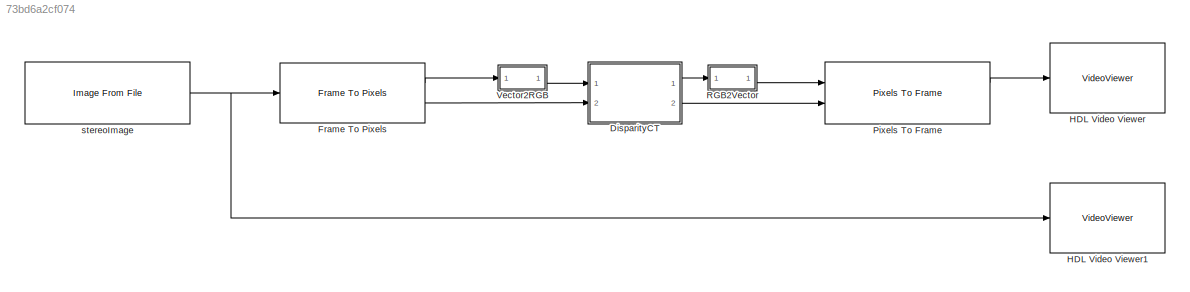
MODEL slx_73bd6a2cf074
KIND model
CONFIG AbsTol = auto
CONFIG EnableMultiTasking = off
CONFIG FixedStep = auto
CONFIG MaxStep = auto
CONFIG MinStep = auto
CONFIG RelTol = 1e-3
CONFIG SampleTimeConstraint = Unconstrained
CONFIG SolverName = VariableStepAuto
CONFIG StartTime = 0.0
CONFIG StopTime = 840000
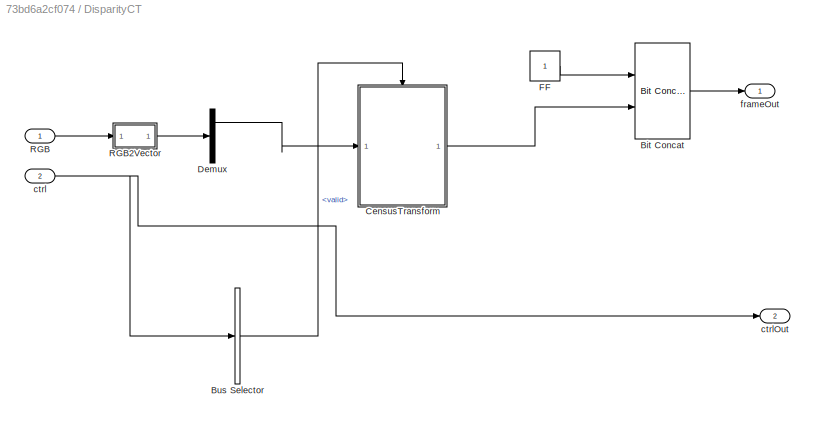
BLOCK [SubSystem] DisparityCT
  Ports = [2, 2]
  RequestExecContextInheritance = off
  TreatAsAtomicUnit = on
BLOCK [Reference] DisparityCT/Bit Concat  REF=hdlsllib/Logic and Bit
Operations/Bit Concat
  Ports = [2, 1]
  SourceBlock = hdlsllib/Logic and Bit\nOperations/Bit Concat
  SourceProductBaseCode = SL
  SourceType = Bit Concat
BLOCK [BusSelector] DisparityCT/Bus Selector
  OutputSignals = valid
  Ports = [1, 1]
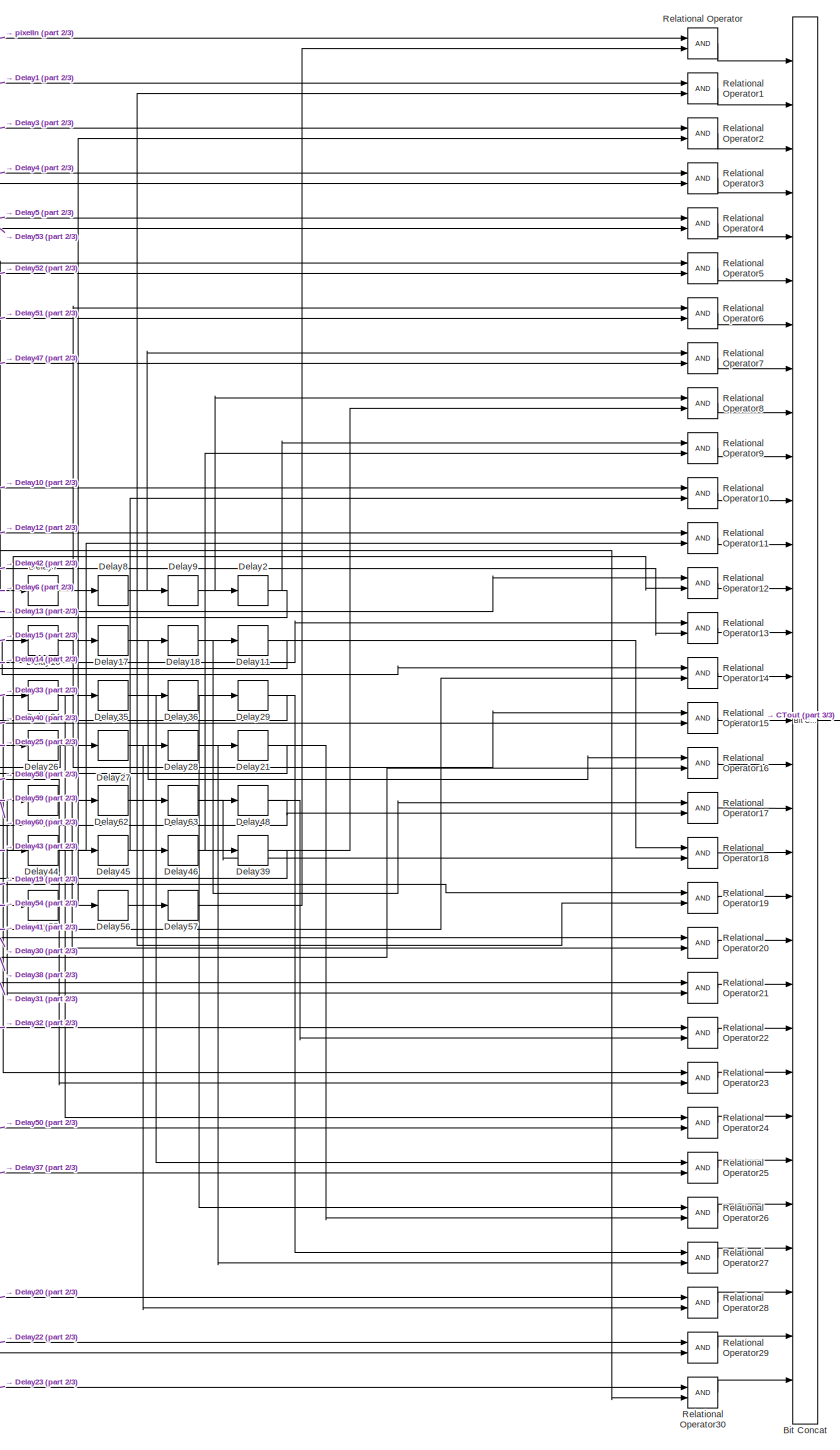
[diagram: DisparityCT/CensusTransform - part 1/3, center side, full height]
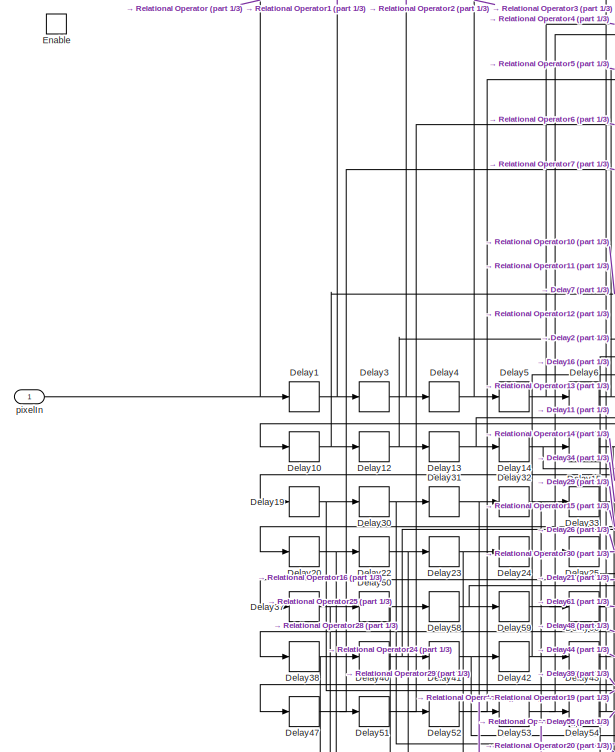
[diagram: DisparityCT/CensusTransform - part 2/3, middle left region]
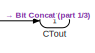
[diagram: DisparityCT/CensusTransform - part 3/3, middle right region]
BLOCK [SubSystem] DisparityCT/CensusTransform
  Ports = [1, 1, 1]
  RequestExecContextInheritance = off
BLOCK [Reference] DisparityCT/CensusTransform/Bit Concat  REF=hdlsllib/Logic and Bit
Operations/Bit Concat
  Ports = [31, 1]
  SourceBlock = hdlsllib/Logic and Bit\nOperations/Bit Concat
  SourceProductBaseCode = SL
  SourceType = Bit Concat
BLOCK [Outport] DisparityCT/CensusTransform/CTout
  InitialOutput = 0
  VectorParamsAs1DForOutWhenUnconnected = off
BLOCK [Delay] DisparityCT/CensusTransform/Delay1
  DelayLength = 9
  InputPortMap = u0
  Ports = [1, 1]
BLOCK [Delay] DisparityCT/CensusTransform/Delay10
  DelayLength = 9
  InputPortMap = u0
  Ports = [1, 1]
BLOCK [Delay] DisparityCT/CensusTransform/Delay11
  DelayLength = 632
  InputPortMap = u0
  Ports = [1, 1]
BLOCK [Delay] DisparityCT/CensusTransform/Delay12
  DelayLength = 9
  InputPortMap = u0
  Ports = [1, 1]
BLOCK [Delay] DisparityCT/CensusTransform/Delay13
  DelayLength = 9
  InputPortMap = u0
  Ports = [1, 1]
BLOCK [Delay] DisparityCT/CensusTransform/Delay14
  DelayLength = 9
  InputPortMap = u0
  Ports = [1, 1]
BLOCK [Delay] DisparityCT/CensusTransform/Delay15
  DelayLength = 9
  InputPortMap = u0
  Ports = [1, 1]
BLOCK [Delay] DisparityCT/CensusTransform/Delay16
  DelayLength = 9
  InputPortMap = u0
  Ports = [1, 1]
BLOCK [Delay] DisparityCT/CensusTransform/Delay17
  DelayLength = 9
  InputPortMap = u0
  Ports = [1, 1]
BLOCK [Delay] DisparityCT/CensusTransform/Delay18
  DelayLength = 9
  InputPortMap = u0
  Ports = [1, 1]
BLOCK [Delay] DisparityCT/CensusTransform/Delay19
  DelayLength = 9
  InputPortMap = u0
  Ports = [1, 1]
BLOCK [Delay] DisparityCT/CensusTransform/Delay2
  DelayLength = 632
  InputPortMap = u0
  Ports = [1, 1]
BLOCK [Delay] DisparityCT/CensusTransform/Delay20
  DelayLength = 9
  InputPortMap = u0
  Ports = [1, 1]
BLOCK [Delay] DisparityCT/CensusTransform/Delay21
  DelayLength = 632
  InputPortMap = u0
  Ports = [1, 1]
BLOCK [Delay] DisparityCT/CensusTransform/Delay22
  DelayLength = 9
  InputPortMap = u0
  Ports = [1, 1]
BLOCK [Delay] DisparityCT/CensusTransform/Delay23
  DelayLength = 9
  InputPortMap = u0
  Ports = [1, 1]
BLOCK [Delay] DisparityCT/CensusTransform/Delay24
  DelayLength = 9
  InputPortMap = u0
  Ports = [1, 1]
BLOCK [Delay] DisparityCT/CensusTransform/Delay25
  DelayLength = 9
  InputPortMap = u0
  Ports = [1, 1]
BLOCK [Delay] DisparityCT/CensusTransform/Delay26
  DelayLength = 9
  InputPortMap = u0
  Ports = [1, 1]
BLOCK [Delay] DisparityCT/CensusTransform/Delay27
  DelayLength = 9
  InputPortMap = u0
  Ports = [1, 1]
BLOCK [Delay] DisparityCT/CensusTransform/Delay28
  DelayLength = 9
  InputPortMap = u0
  Ports = [1, 1]
BLOCK [Delay] DisparityCT/CensusTransform/Delay29
  DelayLength = 632
  InputPortMap = u0
  Ports = [1, 1]
BLOCK [Delay] DisparityCT/CensusTransform/Delay3
  DelayLength = 9
  InputPortMap = u0
  Ports = [1, 1]
BLOCK [Delay] DisparityCT/CensusTransform/Delay30
  DelayLength = 9
  InputPortMap = u0
  Ports = [1, 1]
BLOCK [Delay] DisparityCT/CensusTransform/Delay31
  DelayLength = 9
  InputPortMap = u0
  Ports = [1, 1]
BLOCK [Delay] DisparityCT/CensusTransform/Delay32
  DelayLength = 9
  InputPortMap = u0
  Ports = [1, 1]
BLOCK [Delay] DisparityCT/CensusTransform/Delay33
  DelayLength = 9
  InputPortMap = u0
  Ports = [1, 1]
BLOCK [Delay] DisparityCT/CensusTransform/Delay34
  DelayLength = 9
  InputPortMap = u0
  Ports = [1, 1]
BLOCK [Delay] DisparityCT/CensusTransform/Delay35
  DelayLength = 9
  InputPortMap = u0
  Ports = [1, 1]
BLOCK [Delay] DisparityCT/CensusTransform/Delay36
  DelayLength = 9
  InputPortMap = u0
  Ports = [1, 1]
BLOCK [Delay] DisparityCT/CensusTransform/Delay37
  DelayLength = 9
  InputPortMap = u0
  Ports = [1, 1]
BLOCK [Delay] DisparityCT/CensusTransform/Delay38
  DelayLength = 9
  InputPortMap = u0
  Ports = [1, 1]
BLOCK [Delay] DisparityCT/CensusTransform/Delay39
  DelayLength = 632
  InputPortMap = u0
  Ports = [1, 1]
BLOCK [Delay] DisparityCT/CensusTransform/Delay4
  DelayLength = 9
  InputPortMap = u0
  Ports = [1, 1]
BLOCK [Delay] DisparityCT/CensusTransform/Delay40
  DelayLength = 9
  InputPortMap = u0
  Ports = [1, 1]
BLOCK [Delay] DisparityCT/CensusTransform/Delay41
  DelayLength = 9
  InputPortMap = u0
  Ports = [1, 1]
BLOCK [Delay] DisparityCT/CensusTransform/Delay42
  DelayLength = 9
  InputPortMap = u0
  Ports = [1, 1]
BLOCK [Delay] DisparityCT/CensusTransform/Delay43
  DelayLength = 9
  InputPortMap = u0
  Ports = [1, 1]
BLOCK [Delay] DisparityCT/CensusTransform/Delay44
  DelayLength = 9
  InputPortMap = u0
  Ports = [1, 1]
BLOCK [Delay] DisparityCT/CensusTransform/Delay45
  DelayLength = 9
  InputPortMap = u0
  Ports = [1, 1]
BLOCK [Delay] DisparityCT/CensusTransform/Delay46
  DelayLength = 9
  InputPortMap = u0
  Ports = [1, 1]
BLOCK [Delay] DisparityCT/CensusTransform/Delay47
  DelayLength = 9
  InputPortMap = u0
  Ports = [1, 1]
BLOCK [Delay] DisparityCT/CensusTransform/Delay48
  DelayLength = 632
  InputPortMap = u0
  Ports = [1, 1]
BLOCK [Delay] DisparityCT/CensusTransform/Delay5
  DelayLength = 9
  InputPortMap = u0
  Ports = [1, 1]
BLOCK [Delay] DisparityCT/CensusTransform/Delay50
  DelayLength = 9
  InputPortMap = u0
  Ports = [1, 1]
BLOCK [Delay] DisparityCT/CensusTransform/Delay51
  DelayLength = 9
  InputPortMap = u0
  Ports = [1, 1]
BLOCK [Delay] DisparityCT/CensusTransform/Delay52
  DelayLength = 9
  InputPortMap = u0
  Ports = [1, 1]
BLOCK [Delay] DisparityCT/CensusTransform/Delay53
  DelayLength = 9
  InputPortMap = u0
  Ports = [1, 1]
BLOCK [Delay] DisparityCT/CensusTransform/Delay54
  DelayLength = 9
  InputPortMap = u0
  Ports = [1, 1]
BLOCK [Delay] DisparityCT/CensusTransform/Delay55
  DelayLength = 9
  InputPortMap = u0
  Ports = [1, 1]
BLOCK [Delay] DisparityCT/CensusTransform/Delay56
  DelayLength = 9
  InputPortMap = u0
  Ports = [1, 1]
BLOCK [Delay] DisparityCT/CensusTransform/Delay57
  DelayLength = 9
  InputPortMap = u0
  Ports = [1, 1]
BLOCK [Delay] DisparityCT/CensusTransform/Delay58
  DelayLength = 9
  InputPortMap = u0
  Ports = [1, 1]
BLOCK [Delay] DisparityCT/CensusTransform/Delay59
  DelayLength = 9
  InputPortMap = u0
  Ports = [1, 1]
BLOCK [Delay] DisparityCT/CensusTransform/Delay6
  DelayLength = 9
  InputPortMap = u0
  Ports = [1, 1]
BLOCK [Delay] DisparityCT/CensusTransform/Delay60
  DelayLength = 9
  InputPortMap = u0
  Ports = [1, 1]
BLOCK [Delay] DisparityCT/CensusTransform/Delay61
  DelayLength = 9
  InputPortMap = u0
  Ports = [1, 1]
BLOCK [Delay] DisparityCT/CensusTransform/Delay62
  DelayLength = 9
  InputPortMap = u0
  Ports = [1, 1]
BLOCK [Delay] DisparityCT/CensusTransform/Delay63
  DelayLength = 9
  InputPortMap = u0
  Ports = [1, 1]
BLOCK [Delay] DisparityCT/CensusTransform/Delay7
  DelayLength = 9
  InputPortMap = u0
  Ports = [1, 1]
BLOCK [Delay] DisparityCT/CensusTransform/Delay8
  DelayLength = 9
  InputPortMap = u0
  Ports = [1, 1]
BLOCK [Delay] DisparityCT/CensusTransform/Delay9
  DelayLength = 9
  InputPortMap = u0
  Ports = [1, 1]
BLOCK [EnablePort] DisparityCT/CensusTransform/Enable
  Ports = []
BLOCK [RelationalOperator] DisparityCT/CensusTransform/Relational Operator
  InputSameDT = off
  OutDataTypeStr = boolean
  Ports = [2, 1]
BLOCK [RelationalOperator] DisparityCT/CensusTransform/Relational Operator1
  InputSameDT = off
  OutDataTypeStr = boolean
  Ports = [2, 1]
BLOCK [RelationalOperator] DisparityCT/CensusTransform/Relational Operator10
  InputSameDT = off
  OutDataTypeStr = boolean
  Ports = [2, 1]
BLOCK [RelationalOperator] DisparityCT/CensusTransform/Relational Operator11
  InputSameDT = off
  OutDataTypeStr = boolean
  Ports = [2, 1]
BLOCK [RelationalOperator] DisparityCT/CensusTransform/Relational Operator12
  InputSameDT = off
  OutDataTypeStr = boolean
  Ports = [2, 1]
BLOCK [RelationalOperator] DisparityCT/CensusTransform/Relational Operator13
  InputSameDT = off
  OutDataTypeStr = boolean
  Ports = [2, 1]
BLOCK [RelationalOperator] DisparityCT/CensusTransform/Relational Operator14
  InputSameDT = off
  OutDataTypeStr = boolean
  Ports = [2, 1]
BLOCK [RelationalOperator] DisparityCT/CensusTransform/Relational Operator15
  InputSameDT = off
  OutDataTypeStr = boolean
  Ports = [2, 1]
BLOCK [RelationalOperator] DisparityCT/CensusTransform/Relational Operator16
  InputSameDT = off
  OutDataTypeStr = boolean
  Ports = [2, 1]
BLOCK [RelationalOperator] DisparityCT/CensusTransform/Relational Operator17
  InputSameDT = off
  OutDataTypeStr = boolean
  Ports = [2, 1]
BLOCK [RelationalOperator] DisparityCT/CensusTransform/Relational Operator18
  InputSameDT = off
  OutDataTypeStr = boolean
  Ports = [2, 1]
BLOCK [RelationalOperator] DisparityCT/CensusTransform/Relational Operator19
  InputSameDT = off
  OutDataTypeStr = boolean
  Ports = [2, 1]
BLOCK [RelationalOperator] DisparityCT/CensusTransform/Relational Operator2
  InputSameDT = off
  OutDataTypeStr = boolean
  Ports = [2, 1]
BLOCK [RelationalOperator] DisparityCT/CensusTransform/Relational Operator20
  InputSameDT = off
  OutDataTypeStr = boolean
  Ports = [2, 1]
BLOCK [RelationalOperator] DisparityCT/CensusTransform/Relational Operator21
  InputSameDT = off
  OutDataTypeStr = boolean
  Ports = [2, 1]
BLOCK [RelationalOperator] DisparityCT/CensusTransform/Relational Operator22
  InputSameDT = off
  OutDataTypeStr = boolean
  Ports = [2, 1]
BLOCK [RelationalOperator] DisparityCT/CensusTransform/Relational Operator23
  InputSameDT = off
  OutDataTypeStr = boolean
  Ports = [2, 1]
BLOCK [RelationalOperator] DisparityCT/CensusTransform/Relational Operator24
  InputSameDT = off
  OutDataTypeStr = boolean
  Ports = [2, 1]
BLOCK [RelationalOperator] DisparityCT/CensusTransform/Relational Operator25
  InputSameDT = off
  OutDataTypeStr = boolean
  Ports = [2, 1]
BLOCK [RelationalOperator] DisparityCT/CensusTransform/Relational Operator26
  InputSameDT = off
  OutDataTypeStr = boolean
  Ports = [2, 1]
BLOCK [RelationalOperator] DisparityCT/CensusTransform/Relational Operator27
  InputSameDT = off
  OutDataTypeStr = boolean
  Ports = [2, 1]
BLOCK [RelationalOperator] DisparityCT/CensusTransform/Relational Operator28
  InputSameDT = off
  OutDataTypeStr = boolean
  Ports = [2, 1]
BLOCK [RelationalOperator] DisparityCT/CensusTransform/Relational Operator29
  InputSameDT = off
  OutDataTypeStr = boolean
  Ports = [2, 1]
BLOCK [RelationalOperator] DisparityCT/CensusTransform/Relational Operator3
  InputSameDT = off
  OutDataTypeStr = boolean
  Ports = [2, 1]
BLOCK [RelationalOperator] DisparityCT/CensusTransform/Relational Operator30
  InputSameDT = off
  OutDataTypeStr = boolean
  Ports = [2, 1]
BLOCK [RelationalOperator] DisparityCT/CensusTransform/Relational Operator4
  InputSameDT = off
  OutDataTypeStr = boolean
  Ports = [2, 1]
BLOCK [RelationalOperator] DisparityCT/CensusTransform/Relational Operator5
  InputSameDT = off
  OutDataTypeStr = boolean
  Ports = [2, 1]
BLOCK [RelationalOperator] DisparityCT/CensusTransform/Relational Operator6
  InputSameDT = off
  OutDataTypeStr = boolean
  Ports = [2, 1]
BLOCK [RelationalOperator] DisparityCT/CensusTransform/Relational Operator7
  InputSameDT = off
  OutDataTypeStr = boolean
  Ports = [2, 1]
BLOCK [RelationalOperator] DisparityCT/CensusTransform/Relational Operator8
  InputSameDT = off
  OutDataTypeStr = boolean
  Ports = [2, 1]
BLOCK [RelationalOperator] DisparityCT/CensusTransform/Relational Operator9
  InputSameDT = off
  OutDataTypeStr = boolean
  Ports = [2, 1]
BLOCK [Inport] DisparityCT/CensusTransform/pixelIn
BLOCK [Demux] DisparityCT/Demux
  Outputs = 3
  Ports = [1, 3]
BLOCK [Constant] DisparityCT/FF
  OutDataTypeStr = boolean
  SampleTime = -1
BLOCK [Inport] DisparityCT/RGB
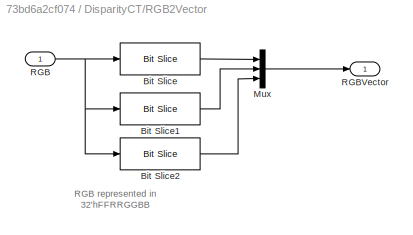
BLOCK [SubSystem] DisparityCT/RGB2Vector
  Ports = [1, 1]
  RequestExecContextInheritance = off
  ShowPortLabels = none
BLOCK [Reference] DisparityCT/RGB2Vector/Bit Slice  REF=hdlsllib/Logic and Bit
Operations/Bit Slice
  Ports = [1, 1]
  SourceBlock = hdlsllib/Logic and Bit\nOperations/Bit Slice
  SourceProductBaseCode = SL
  SourceType = Bit Slice
BLOCK [Reference] DisparityCT/RGB2Vector/Bit Slice1  REF=hdlsllib/Logic and Bit
Operations/Bit Slice
  Ports = [1, 1]
  SourceBlock = hdlsllib/Logic and Bit\nOperations/Bit Slice
  SourceProductBaseCode = SL
  SourceType = Bit Slice
BLOCK [Reference] DisparityCT/RGB2Vector/Bit Slice2  REF=hdlsllib/Logic and Bit
Operations/Bit Slice
  Ports = [1, 1]
  SourceBlock = hdlsllib/Logic and Bit\nOperations/Bit Slice
  SourceProductBaseCode = SL
  SourceType = Bit Slice
BLOCK [Mux] DisparityCT/RGB2Vector/Mux
  DisplayOption = bar
  Inputs = 3
  Ports = [3, 1]
BLOCK [Inport] DisparityCT/RGB2Vector/RGB
BLOCK [Outport] DisparityCT/RGB2Vector/RGBVector
  VectorParamsAs1DForOutWhenUnconnected = off
BLOCK [Inport] DisparityCT/ctrl
  Port = 2
BLOCK [Outport] DisparityCT/ctrlOut
  Port = 2
  VectorParamsAs1DForOutWhenUnconnected = off
BLOCK [Outport] DisparityCT/frameOut
BLOCK [Reference] Frame To Pixels  REF=visionhdlio/Frame To Pixels
  Ports = [1, 2]
  SourceBlock = visionhdlio/Frame To Pixels
  SourceProductBaseCode = VT
  SourceType = Frame To Pixels
BLOCK [VideoViewer] HDL Video Viewer
  FigPos = [121 747 756 478]
  Ports = [1]
  ScopeSpecificationString = vipscopes.VideoViewerScopeCfg('CurrentConfiguration', extmgr.ConfigurationSet(extmgr.Configuration('Core','General UI',true),extmgr.Configuration('Core','Source UI',true),extmgr.Configuration('Sources','WiredSimulink',true),extmgr.Configuration('Sources','Workspace',false),extmgr.Configuration('Sources','Streaming',false),extmgr.Configuration('Sources','Simulink',false),extmgr.Configuration('Sourc...<+1303ch>
  useColorMap = on
BLOCK [VideoViewer] HDL Video Viewer1
  FigPos = [870 748 756 478]
  Ports = [1]
  ScopeSpecificationString = vipscopes.VideoViewerScopeCfg('CurrentConfiguration', extmgr.ConfigurationSet(extmgr.Configuration('Core','General UI',true),extmgr.Configuration('Core','Source UI',true),extmgr.Configuration('Sources','WiredSimulink',true),extmgr.Configuration('Sources','Workspace',false),extmgr.Configuration('Sources','Streaming',false),extmgr.Configuration('Sources','Simulink',false),extmgr.Configuration('Sourc...<+1303ch>
  useColorMap = on
BLOCK [Reference] Pixels To Frame  REF=visionhdlio/Pixels To Frame
  Ports = [2, 2]
  SourceBlock = visionhdlio/Pixels To Frame
  SourceProductBaseCode = VT
  SourceType = Pixels To Frame
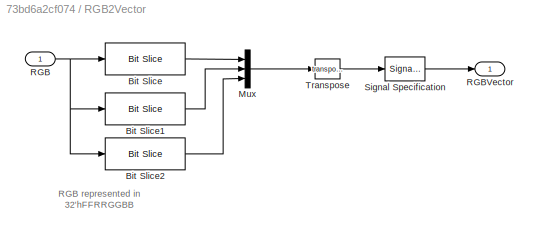
BLOCK [SubSystem] RGB2Vector
  Ports = [1, 1]
  RequestExecContextInheritance = off
  ShowPortLabels = none
BLOCK [Reference] RGB2Vector/Bit Slice  REF=hdlsllib/Logic and Bit
Operations/Bit Slice
  Ports = [1, 1]
  SourceBlock = hdlsllib/Logic and Bit\nOperations/Bit Slice
  SourceProductBaseCode = SL
  SourceType = Bit Slice
BLOCK [Reference] RGB2Vector/Bit Slice1  REF=hdlsllib/Logic and Bit
Operations/Bit Slice
  Ports = [1, 1]
  SourceBlock = hdlsllib/Logic and Bit\nOperations/Bit Slice
  SourceProductBaseCode = SL
  SourceType = Bit Slice
BLOCK [Reference] RGB2Vector/Bit Slice2  REF=hdlsllib/Logic and Bit
Operations/Bit Slice
  Ports = [1, 1]
  SourceBlock = hdlsllib/Logic and Bit\nOperations/Bit Slice
  SourceProductBaseCode = SL
  SourceType = Bit Slice
BLOCK [Mux] RGB2Vector/Mux
  DisplayOption = bar
  Inputs = 3
  Ports = [3, 1]
BLOCK [Inport] RGB2Vector/RGB
BLOCK [Outport] RGB2Vector/RGBVector
  VectorParamsAs1DForOutWhenUnconnected = off
BLOCK [SignalSpecification] RGB2Vector/Signal Specification
  SignalType = real
BLOCK [Math] RGB2Vector/Transpose
  Operator = transpose
  Ports = [1, 1]
  SignedPower = on
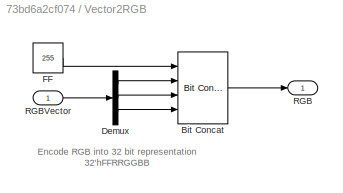
BLOCK [SubSystem] Vector2RGB
  Ports = [1, 1]
  RequestExecContextInheritance = off
  ShowPortLabels = none
BLOCK [Reference] Vector2RGB/Bit Concat  REF=hdlsllib/Logic and Bit
Operations/Bit Concat
  Ports = [4, 1]
  SourceBlock = hdlsllib/Logic and Bit\nOperations/Bit Concat
  SourceProductBaseCode = SL
  SourceType = Bit Concat
BLOCK [Demux] Vector2RGB/Demux
  Outputs = 3
  Ports = [1, 3]
BLOCK [Constant] Vector2RGB/FF
  OutDataTypeStr = uint8
  SampleTime = -1
  Value = 255
BLOCK [Outport] Vector2RGB/RGB
  VectorParamsAs1DForOutWhenUnconnected = off
BLOCK [Inport] Vector2RGB/RGBVector
BLOCK [Reference] stereoImage  REF=visionsources/Image From File
  Ports = [0, 1]
  SourceBlock = visionsources/Image From File
  SourceProductBaseCode = VP
  SourceType = Image From File
  Tag = vipblks_nd
ANNOTATION DisparityCT/RGB2Vector: RGB represented in 32'hFFRRGGBB
ANNOTATION RGB2Vector: RGB represented in 32'hFFRRGGBB
ANNOTATION Vector2RGB: Encode RGB into 32 bit representation 32'hFFRRGGBB
LINE DisparityCT/Bit Concat:1 -> DisparityCT/frameOut:1
LINE DisparityCT/Bus Selector:1 -> DisparityCT/CensusTransform:enable
LINE DisparityCT/CensusTransform/Bit Concat:1 -> DisparityCT/CensusTransform/CTout:1
NET DisparityCT/CensusTransform/Delay10:1 -> DisparityCT/CensusTransform/Delay12:1, DisparityCT/CensusTransform/Relational Operator10:1
NET DisparityCT/CensusTransform/Delay11:1 -> DisparityCT/CensusTransform/Delay19:1, DisparityCT/CensusTransform/Relational Operator18:1
NET DisparityCT/CensusTransform/Delay12:1 -> DisparityCT/CensusTransform/Delay13:1, DisparityCT/CensusTransform/Relational Operator11:1
NET DisparityCT/CensusTransform/Delay13:1 -> DisparityCT/CensusTransform/Delay14:1, DisparityCT/CensusTransform/Relational Operator12:1
NET DisparityCT/CensusTransform/Delay14:1 -> DisparityCT/CensusTransform/Delay15:1, DisparityCT/CensusTransform/Relational Operator13:1
NET DisparityCT/CensusTransform/Delay15:1 -> DisparityCT/CensusTransform/Delay16:1, DisparityCT/CensusTransform/Relational Operator14:1
NET DisparityCT/CensusTransform/Delay16:1 -> DisparityCT/CensusTransform/Delay17:1, DisparityCT/CensusTransform/Relational Operator15:1
NET DisparityCT/CensusTransform/Delay17:1 -> DisparityCT/CensusTransform/Delay18:1, DisparityCT/CensusTransform/Relational Operator16:1
NET DisparityCT/CensusTransform/Delay18:1 -> DisparityCT/CensusTransform/Delay11:1, DisparityCT/CensusTransform/Relational Operator17:1
NET DisparityCT/CensusTransform/Delay19:1 -> DisparityCT/CensusTransform/Delay30:1, DisparityCT/CensusTransform/Relational Operator19:1
NET DisparityCT/CensusTransform/Delay1:1 -> DisparityCT/CensusTransform/Delay3:1, DisparityCT/CensusTransform/Relational Operator1:1
NET DisparityCT/CensusTransform/Delay20:1 -> DisparityCT/CensusTransform/Delay22:1, DisparityCT/CensusTransform/Relational Operator28:1
NET DisparityCT/CensusTransform/Delay21:1 -> DisparityCT/CensusTransform/Delay37:1, DisparityCT/CensusTransform/Relational Operator26:2
NET DisparityCT/CensusTransform/Delay22:1 -> DisparityCT/CensusTransform/Delay23:1, DisparityCT/CensusTransform/Relational Operator29:1
NET DisparityCT/CensusTransform/Delay23:1 -> DisparityCT/CensusTransform/Delay24:1, DisparityCT/CensusTransform/Relational Operator30:1
LINE DisparityCT/CensusTransform/Delay24:1 -> DisparityCT/CensusTransform/Delay25:1
NET DisparityCT/CensusTransform/Delay25:1 -> DisparityCT/CensusTransform/Delay26:1, DisparityCT/CensusTransform/Relational Operator30:2
NET DisparityCT/CensusTransform/Delay26:1 -> DisparityCT/CensusTransform/Delay27:1, DisparityCT/CensusTransform/Relational Operator29:2
NET DisparityCT/CensusTransform/Delay27:1 -> DisparityCT/CensusTransform/Delay28:1, DisparityCT/CensusTransform/Relational Operator28:2
NET DisparityCT/CensusTransform/Delay28:1 -> DisparityCT/CensusTransform/Delay21:1, DisparityCT/CensusTransform/Relational Operator27:2
NET DisparityCT/CensusTransform/Delay29:1 -> DisparityCT/CensusTransform/Delay20:1, DisparityCT/CensusTransform/Relational Operator27:1
NET DisparityCT/CensusTransform/Delay2:1 -> DisparityCT/CensusTransform/Delay10:1, DisparityCT/CensusTransform/Relational Operator9:1
NET DisparityCT/CensusTransform/Delay30:1 -> DisparityCT/CensusTransform/Delay31:1, DisparityCT/CensusTransform/Relational Operator20:1
NET DisparityCT/CensusTransform/Delay31:1 -> DisparityCT/CensusTransform/Delay32:1, DisparityCT/CensusTransform/Relational Operator21:1
NET DisparityCT/CensusTransform/Delay32:1 -> DisparityCT/CensusTransform/Delay33:1, DisparityCT/CensusTransform/Relational Operator22:1
NET DisparityCT/CensusTransform/Delay33:1 -> DisparityCT/CensusTransform/Delay34:1, DisparityCT/CensusTransform/Relational Operator23:1
NET DisparityCT/CensusTransform/Delay34:1 -> DisparityCT/CensusTransform/Delay35:1, DisparityCT/CensusTransform/Relational Operator24:1
NET DisparityCT/CensusTransform/Delay35:1 -> DisparityCT/CensusTransform/Delay36:1, DisparityCT/CensusTransform/Relational Operator25:1
NET DisparityCT/CensusTransform/Delay36:1 -> DisparityCT/CensusTransform/Delay29:1, DisparityCT/CensusTransform/Relational Operator26:1
NET DisparityCT/CensusTransform/Delay37:1 -> DisparityCT/CensusTransform/Delay50:1, DisparityCT/CensusTransform/Relational Operator25:2
NET DisparityCT/CensusTransform/Delay38:1 -> DisparityCT/CensusTransform/Delay40:1, DisparityCT/CensusTransform/Relational Operator16:2
NET DisparityCT/CensusTransform/Delay39:1 -> DisparityCT/CensusTransform/Delay47:1, DisparityCT/CensusTransform/Relational Operator8:2
NET DisparityCT/CensusTransform/Delay3:1 -> DisparityCT/CensusTransform/Delay4:1, DisparityCT/CensusTransform/Relational Operator2:1
NET DisparityCT/CensusTransform/Delay40:1 -> DisparityCT/CensusTransform/Delay41:1, DisparityCT/CensusTransform/Relational Operator15:2
NET DisparityCT/CensusTransform/Delay41:1 -> DisparityCT/CensusTransform/Delay42:1, DisparityCT/CensusTransform/Relational Operator14:2
NET DisparityCT/CensusTransform/Delay42:1 -> DisparityCT/CensusTransform/Delay43:1, DisparityCT/CensusTransform/Relational Operator13:2
NET DisparityCT/CensusTransform/Delay43:1 -> DisparityCT/CensusTransform/Delay44:1, DisparityCT/CensusTransform/Relational Operator12:2
NET DisparityCT/CensusTransform/Delay44:1 -> DisparityCT/CensusTransform/Delay45:1, DisparityCT/CensusTransform/Relational Operator11:2
NET DisparityCT/CensusTransform/Delay45:1 -> DisparityCT/CensusTransform/Delay46:1, DisparityCT/CensusTransform/Relational Operator10:2
NET DisparityCT/CensusTransform/Delay46:1 -> DisparityCT/CensusTransform/Delay39:1, DisparityCT/CensusTransform/Relational Operator9:2
NET DisparityCT/CensusTransform/Delay47:1 -> DisparityCT/CensusTransform/Delay51:1, DisparityCT/CensusTransform/Relational Operator7:2
NET DisparityCT/CensusTransform/Delay48:1 -> DisparityCT/CensusTransform/Delay38:1, DisparityCT/CensusTransform/Relational Operator17:2
NET DisparityCT/CensusTransform/Delay4:1 -> DisparityCT/CensusTransform/Delay5:1, DisparityCT/CensusTransform/Relational Operator3:1
NET DisparityCT/CensusTransform/Delay50:1 -> DisparityCT/CensusTransform/Delay58:1, DisparityCT/CensusTransform/Relational Operator24:2
NET DisparityCT/CensusTransform/Delay51:1 -> DisparityCT/CensusTransform/Delay52:1, DisparityCT/CensusTransform/Relational Operator6:2
NET DisparityCT/CensusTransform/Delay52:1 -> DisparityCT/CensusTransform/Delay53:1, DisparityCT/CensusTransform/Relational Operator5:2
NET DisparityCT/CensusTransform/Delay53:1 -> DisparityCT/CensusTransform/Delay54:1, DisparityCT/CensusTransform/Relational Operator4:2
NET DisparityCT/CensusTransform/Delay54:1 -> DisparityCT/CensusTransform/Delay55:1, DisparityCT/CensusTransform/Relational Operator3:2
NET DisparityCT/CensusTransform/Delay55:1 -> DisparityCT/CensusTransform/Delay56:1, DisparityCT/CensusTransform/Relational Operator2:2
NET DisparityCT/CensusTransform/Delay56:1 -> DisparityCT/CensusTransform/Delay57:1, DisparityCT/CensusTransform/Relational Operator19:2, DisparityCT/CensusTransform/Relational Operator1:2
LINE DisparityCT/CensusTransform/Delay57:1 -> DisparityCT/CensusTransform/Relational Operator:2
NET DisparityCT/CensusTransform/Delay58:1 -> DisparityCT/CensusTransform/Delay59:1, DisparityCT/CensusTransform/Relational Operator23:2
NET DisparityCT/CensusTransform/Delay59:1 -> DisparityCT/CensusTransform/Delay60:1, DisparityCT/CensusTransform/Relational Operator22:2
NET DisparityCT/CensusTransform/Delay5:1 -> DisparityCT/CensusTransform/Delay6:1, DisparityCT/CensusTransform/Relational Operator4:1
NET DisparityCT/CensusTransform/Delay60:1 -> DisparityCT/CensusTransform/Delay61:1, DisparityCT/CensusTransform/Relational Operator21:2
NET DisparityCT/CensusTransform/Delay61:1 -> DisparityCT/CensusTransform/Delay62:1, DisparityCT/CensusTransform/Relational Operator20:2
LINE DisparityCT/CensusTransform/Delay62:1 -> DisparityCT/CensusTransform/Delay63:1
NET DisparityCT/CensusTransform/Delay63:1 -> DisparityCT/CensusTransform/Delay48:1, DisparityCT/CensusTransform/Relational Operator18:2
NET DisparityCT/CensusTransform/Delay6:1 -> DisparityCT/CensusTransform/Delay7:1, DisparityCT/CensusTransform/Relational Operator5:1
NET DisparityCT/CensusTransform/Delay7:1 -> DisparityCT/CensusTransform/Delay8:1, DisparityCT/CensusTransform/Relational Operator6:1
NET DisparityCT/CensusTransform/Delay8:1 -> DisparityCT/CensusTransform/Delay9:1, DisparityCT/CensusTransform/Relational Operator7:1
NET DisparityCT/CensusTransform/Delay9:1 -> DisparityCT/CensusTransform/Delay2:1, DisparityCT/CensusTransform/Relational Operator8:1
LINE DisparityCT/CensusTransform/Relational Operator10:1 -> DisparityCT/CensusTransform/Bit Concat:11
LINE DisparityCT/CensusTransform/Relational Operator11:1 -> DisparityCT/CensusTransform/Bit Concat:12
LINE DisparityCT/CensusTransform/Relational Operator12:1 -> DisparityCT/CensusTransform/Bit Concat:13
LINE DisparityCT/CensusTransform/Relational Operator13:1 -> DisparityCT/CensusTransform/Bit Concat:14
LINE DisparityCT/CensusTransform/Relational Operator14:1 -> DisparityCT/CensusTransform/Bit Concat:15
LINE DisparityCT/CensusTransform/Relational Operator15:1 -> DisparityCT/CensusTransform/Bit Concat:16
LINE DisparityCT/CensusTransform/Relational Operator16:1 -> DisparityCT/CensusTransform/Bit Concat:17
LINE DisparityCT/CensusTransform/Relational Operator17:1 -> DisparityCT/CensusTransform/Bit Concat:18
LINE DisparityCT/CensusTransform/Relational Operator18:1 -> DisparityCT/CensusTransform/Bit Concat:19
LINE DisparityCT/CensusTransform/Relational Operator19:1 -> DisparityCT/CensusTransform/Bit Concat:20
LINE DisparityCT/CensusTransform/Relational Operator1:1 -> DisparityCT/CensusTransform/Bit Concat:2
LINE DisparityCT/CensusTransform/Relational Operator20:1 -> DisparityCT/CensusTransform/Bit Concat:21
LINE DisparityCT/CensusTransform/Relational Operator21:1 -> DisparityCT/CensusTransform/Bit Concat:22
LINE DisparityCT/CensusTransform/Relational Operator22:1 -> DisparityCT/CensusTransform/Bit Concat:23
LINE DisparityCT/CensusTransform/Relational Operator23:1 -> DisparityCT/CensusTransform/Bit Concat:24
LINE DisparityCT/CensusTransform/Relational Operator24:1 -> DisparityCT/CensusTransform/Bit Concat:25
LINE DisparityCT/CensusTransform/Relational Operator25:1 -> DisparityCT/CensusTransform/Bit Concat:26
LINE DisparityCT/CensusTransform/Relational Operator26:1 -> DisparityCT/CensusTransform/Bit Concat:27
LINE DisparityCT/CensusTransform/Relational Operator27:1 -> DisparityCT/CensusTransform/Bit Concat:28
LINE DisparityCT/CensusTransform/Relational Operator28:1 -> DisparityCT/CensusTransform/Bit Concat:29
LINE DisparityCT/CensusTransform/Relational Operator29:1 -> DisparityCT/CensusTransform/Bit Concat:30
LINE DisparityCT/CensusTransform/Relational Operator2:1 -> DisparityCT/CensusTransform/Bit Concat:3
LINE DisparityCT/CensusTransform/Relational Operator30:1 -> DisparityCT/CensusTransform/Bit Concat:31
LINE DisparityCT/CensusTransform/Relational Operator3:1 -> DisparityCT/CensusTransform/Bit Concat:4
LINE DisparityCT/CensusTransform/Relational Operator4:1 -> DisparityCT/CensusTransform/Bit Concat:5
LINE DisparityCT/CensusTransform/Relational Operator5:1 -> DisparityCT/CensusTransform/Bit Concat:6
LINE DisparityCT/CensusTransform/Relational Operator6:1 -> DisparityCT/CensusTransform/Bit Concat:7
LINE DisparityCT/CensusTransform/Relational Operator7:1 -> DisparityCT/CensusTransform/Bit Concat:8
LINE DisparityCT/CensusTransform/Relational Operator8:1 -> DisparityCT/CensusTransform/Bit Concat:9
LINE DisparityCT/CensusTransform/Relational Operator9:1 -> DisparityCT/CensusTransform/Bit Concat:10
LINE DisparityCT/CensusTransform/Relational Operator:1 -> DisparityCT/CensusTransform/Bit Concat:1
NET DisparityCT/CensusTransform/pixelIn:1 -> DisparityCT/CensusTransform/Delay1:1, DisparityCT/CensusTransform/Relational Operator:1
LINE DisparityCT/CensusTransform:1 -> DisparityCT/Bit Concat:2
LINE DisparityCT/Demux:1 -> DisparityCT/CensusTransform:1
LINE DisparityCT/FF:1 -> DisparityCT/Bit Concat:1
LINE DisparityCT/RGB2Vector/Bit Slice1:1 -> DisparityCT/RGB2Vector/Mux:2
LINE DisparityCT/RGB2Vector/Bit Slice2:1 -> DisparityCT/RGB2Vector/Mux:3
LINE DisparityCT/RGB2Vector/Bit Slice:1 -> DisparityCT/RGB2Vector/Mux:1
LINE DisparityCT/RGB2Vector/Mux:1 -> DisparityCT/RGB2Vector/RGBVector:1
NET DisparityCT/RGB2Vector/RGB:1 -> DisparityCT/RGB2Vector/Bit Slice1:1, DisparityCT/RGB2Vector/Bit Slice2:1, DisparityCT/RGB2Vector/Bit Slice:1
LINE DisparityCT/RGB2Vector:1 -> DisparityCT/Demux:1
LINE DisparityCT/RGB:1 -> DisparityCT/RGB2Vector:1
NET DisparityCT/ctrl:1 -> DisparityCT/Bus Selector:1, DisparityCT/ctrlOut:1
LINE DisparityCT:1 -> RGB2Vector:1
LINE DisparityCT:2 -> Pixels To Frame:2
LINE Frame To Pixels:1 -> Vector2RGB:1
LINE Frame To Pixels:2 -> DisparityCT:2
LINE Pixels To Frame:1 -> HDL Video Viewer:1
LINE RGB2Vector/Bit Slice1:1 -> RGB2Vector/Mux:2
LINE RGB2Vector/Bit Slice2:1 -> RGB2Vector/Mux:3
LINE RGB2Vector/Bit Slice:1 -> RGB2Vector/Mux:1
LINE RGB2Vector/Mux:1 -> RGB2Vector/Transpose:1
NET RGB2Vector/RGB:1 -> RGB2Vector/Bit Slice1:1, RGB2Vector/Bit Slice2:1, RGB2Vector/Bit Slice:1
LINE RGB2Vector/Signal Specification:1 -> RGB2Vector/RGBVector:1
LINE RGB2Vector/Transpose:1 -> RGB2Vector/Signal Specification:1
LINE RGB2Vector:1 -> Pixels To Frame:1
LINE Vector2RGB/Bit Concat:1 -> Vector2RGB/RGB:1
LINE Vector2RGB/Demux:1 -> Vector2RGB/Bit Concat:2
LINE Vector2RGB/Demux:2 -> Vector2RGB/Bit Concat:3
LINE Vector2RGB/Demux:3 -> Vector2RGB/Bit Concat:4
LINE Vector2RGB/FF:1 -> Vector2RGB/Bit Concat:1
LINE Vector2RGB/RGBVector:1 -> Vector2RGB/Demux:1
LINE Vector2RGB:1 -> DisparityCT:1
NET stereoImage:1 -> Frame To Pixels:1, HDL Video Viewer1:1
note: NET lines group one-source signal fan-out (src -> all destinations, sorted); 1:1 wires keep LINE
